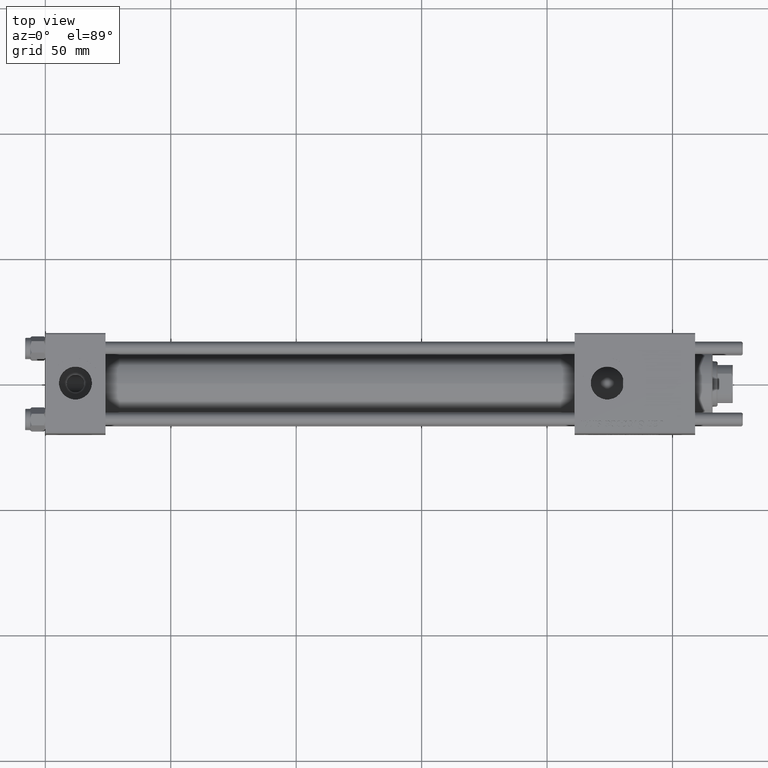
[diagram: clean part render]
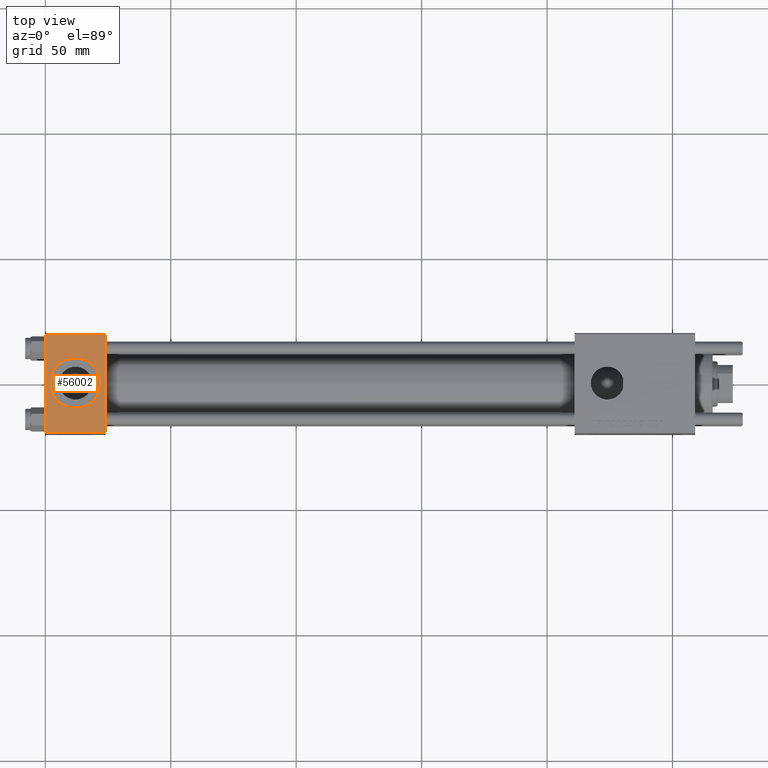
[diagram: same view with one face highlighted and labeled with its STEP entity id]
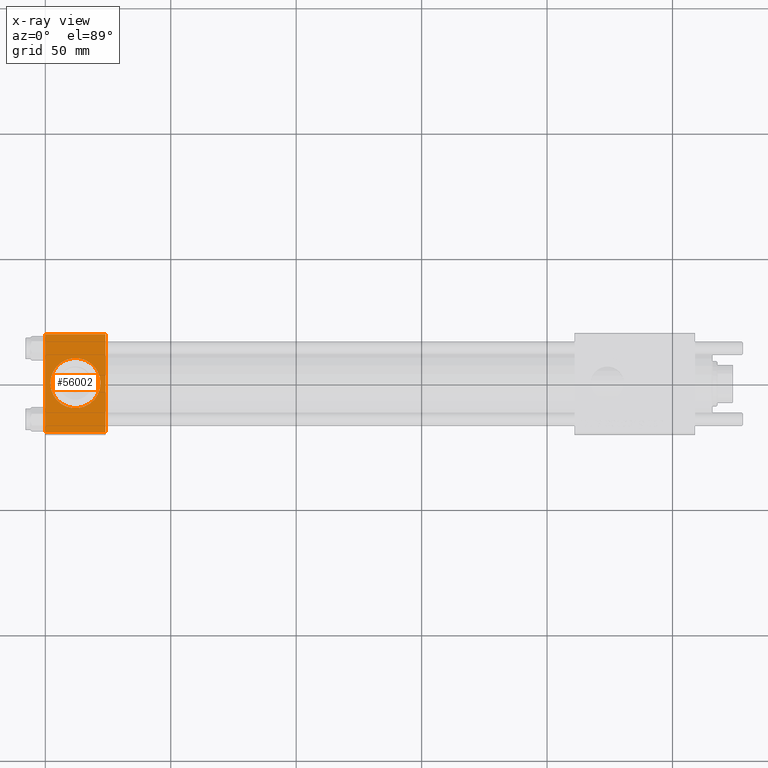
[diagram: x-ray of the same camera — body ghosted, the highlighted face saturated]
A machine part, top view. The second image highlights one B-rep face of the part: STEP entity #56002.
The next image is the same camera in x-ray: the body ghosted, the highlighted face saturated — about 0% of this face is hidden behind the body in this view.
In plain terms, the highlighted planar face has unit normal (0, 0, -1).
Its self-contained STEP definition (entity closure, byte-faithful):
#173 = DIRECTION ( 'NONE',  ( 0.000000000000000000, -1.000000000000000000, -2.602085213965210149E-16 ) ) ;
#210 = EDGE_CURVE ( 'NONE', #45974, #35216, #7653, .T. ) ;
#677 = FACE_BOUND ( 'NONE', #35646, .T. ) ;
#1329 = CIRCLE ( 'NONE', #4040, 9.999999999999998224 ) ;
#1734 = CARTESIAN_POINT ( 'NONE',  ( 0.000000000000000000, 19.50000000000000000, 20.00000000000000000 ) ) ;
#3120 = DIRECTION ( 'NONE',  ( 1.000000000000000000, 0.000000000000000000, 0.000000000000000000 ) ) ;
#3693 = VERTEX_POINT ( 'NONE', #36996 ) ;
#3744 = EDGE_CURVE ( 'NONE', #35216, #45974, #1329, .T. ) ;
#3985 = CARTESIAN_POINT ( 'NONE',  ( 0.000000000000000000, 19.50000000000000000, 20.00000000000000000 ) ) ;
#4040 = AXIS2_PLACEMENT_3D ( 'NONE', #34658, #22033, #30632 ) ;
#5510 = VECTOR ( 'NONE', #39732, 1000.000000000000000 ) ;
#7245 = EDGE_CURVE ( 'NONE', #41400, #17201, #30278, .T. ) ;
#7653 = CIRCLE ( 'NONE', #14936, 9.999999999999998224 ) ;
#8417 = ORIENTED_EDGE ( 'NONE', *, *, #3744, .F. ) ;
#9589 = ORIENTED_EDGE ( 'NONE', *, *, #210, .F. ) ;
#11718 = DIRECTION ( 'NONE',  ( 0.000000000000000000, 0.000000000000000000, 1.000000000000000000 ) ) ;
#12120 = CARTESIAN_POINT ( 'NONE',  ( 22.00000000000000000, 1.540743955509788682E-30, 19.99999999999999645 ) ) ;
#12436 = VERTEX_POINT ( 'NONE', #1734 ) ;
#13143 = LINE ( 'NONE', #3985, #16035 ) ;
#14326 = LINE ( 'NONE', #19209, #42899 ) ;
#14936 = AXIS2_PLACEMENT_3D ( 'NONE', #33233, #11718, #3120 ) ;
#16035 = VECTOR ( 'NONE', #17448, 1000.000000000000000 ) ;
#16997 = FACE_OUTER_BOUND ( 'NONE', #24486, .T. ) ;
#17201 = VERTEX_POINT ( 'NONE', #27394 ) ;
#17441 = EDGE_CURVE ( 'NONE', #12436, #3693, #14326, .T. ) ;
#17448 = DIRECTION ( 'NONE',  ( -1.000000000000000000, 0.000000000000000000, 0.000000000000000000 ) ) ;
#19209 = CARTESIAN_POINT ( 'NONE',  ( 0.000000000000000000, 20.00000000000000000, 20.00000000000000000 ) ) ;
#22033 = DIRECTION ( 'NONE',  ( 0.000000000000000000, 0.000000000000000000, 1.000000000000000000 ) ) ;
#22156 = DIRECTION ( 'NONE',  ( 0.000000000000000000, 2.602085213965210149E-16, -1.000000000000000000 ) ) ;
#22828 = CARTESIAN_POINT ( 'NONE',  ( 24.00000000000000000, -19.49999999999999289, 19.99999999999998934 ) ) ;
#24486 = EDGE_LOOP ( 'NONE', ( #36887, #49024, #41454, #25310 ) ) ;
#25310 = ORIENTED_EDGE ( 'NONE', *, *, #27640, .T. ) ;
#27101 = AXIS2_PLACEMENT_3D ( 'NONE', #52258, #22156, #51982 ) ;
#27127 = LINE ( 'NONE', #22828, #5510 ) ;
#27394 = CARTESIAN_POINT ( 'NONE',  ( 24.00000000000000000, -19.49999999999999289, 19.99999999999998934 ) ) ;
#27640 = EDGE_CURVE ( 'NONE', #41400, #12436, #13143, .T. ) ;
#30278 = LINE ( 'NONE', #47488, #51715 ) ;
#30632 = DIRECTION ( 'NONE',  ( 1.000000000000000000, 0.000000000000000000, 0.000000000000000000 ) ) ;
#33233 = CARTESIAN_POINT ( 'NONE',  ( 12.00000000000000000, 1.540743955509788682E-30, 19.99999999999999645 ) ) ;
#34498 = PLANE ( 'NONE',  #27101 ) ;
#34658 = CARTESIAN_POINT ( 'NONE',  ( 12.00000000000000000, 1.540743955509788682E-30, 19.99999999999999645 ) ) ;
#35216 = VERTEX_POINT ( 'NONE', #12120 ) ;
#35646 = EDGE_LOOP ( 'NONE', ( #8417, #9589 ) ) ;
#36887 = ORIENTED_EDGE ( 'NONE', *, *, #17441, .T. ) ;
#36996 = CARTESIAN_POINT ( 'NONE',  ( 0.000000000000000000, -19.49999999999999289, 19.99999999999998934 ) ) ;
#39732 = DIRECTION ( 'NONE',  ( 1.000000000000000000, 0.000000000000000000, 0.000000000000000000 ) ) ;
#40700 = DIRECTION ( 'NONE',  ( 0.000000000000000000, -1.000000000000000000, -2.602085213965210149E-16 ) ) ;
#41400 = VERTEX_POINT ( 'NONE', #48974 ) ;
#41454 = ORIENTED_EDGE ( 'NONE', *, *, #7245, .F. ) ;
#42899 = VECTOR ( 'NONE', #40700, 1000.000000000000000 ) ;
#45974 = VERTEX_POINT ( 'NONE', #48450 ) ;
#47488 = CARTESIAN_POINT ( 'NONE',  ( 24.00000000000000000, 20.00000000000000000, 20.00000000000000000 ) ) ;
#48450 = CARTESIAN_POINT ( 'NONE',  ( 2.000000000000003553, 1.224646799147354440E-15, 19.99999999999999645 ) ) ;
#48650 = EDGE_CURVE ( 'NONE', #3693, #17201, #27127, .T. ) ;
#48974 = CARTESIAN_POINT ( 'NONE',  ( 24.00000000000000000, 19.50000000000000000, 20.00000000000000000 ) ) ;
#49024 = ORIENTED_EDGE ( 'NONE', *, *, #48650, .T. ) ;
#51715 = VECTOR ( 'NONE', #173, 1000.000000000000000 ) ;
#51982 = DIRECTION ( 'NONE',  ( 0.000000000000000000, 1.000000000000000000, 2.602085213965210149E-16 ) ) ;
#52258 = CARTESIAN_POINT ( 'NONE',  ( 24.00000000000000000, 20.00000000000000000, 20.00000000000000000 ) ) ;
#56002 = ADVANCED_FACE ( 'NONE', ( #677, #16997 ), #34498, .F. ) ;